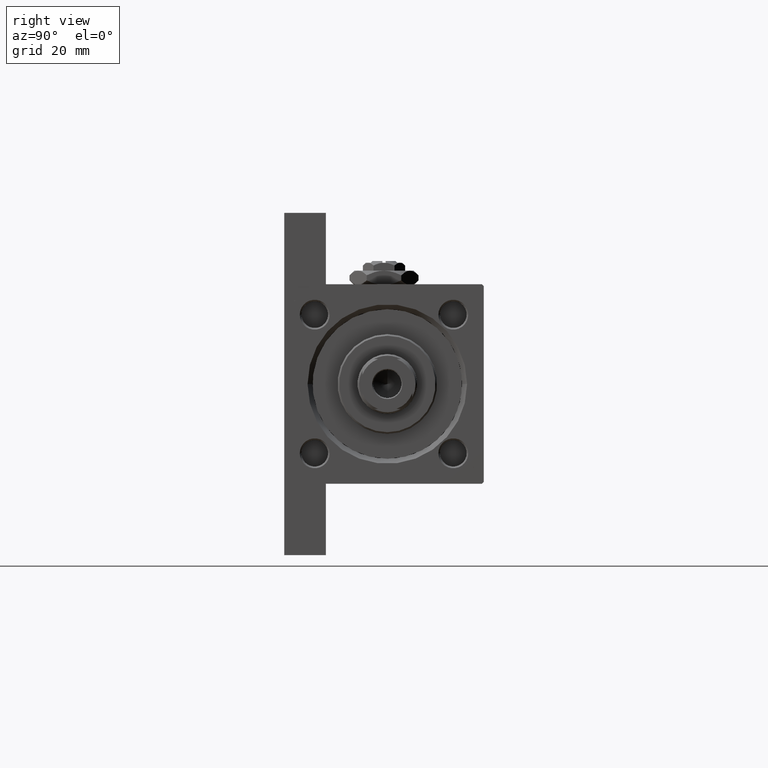
[diagram: clean part render]
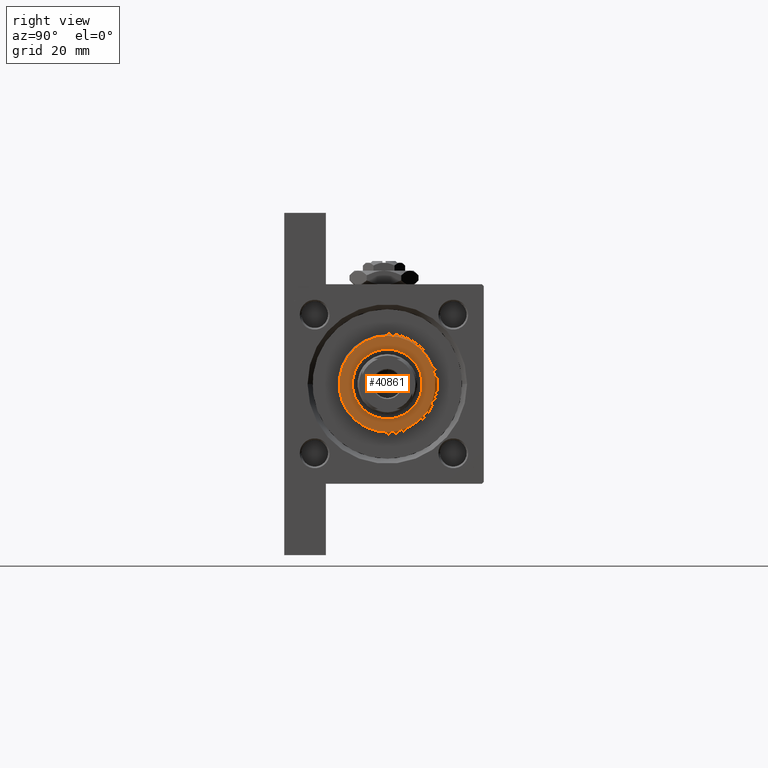
[diagram: same view with one face highlighted and labeled with its STEP entity id]
A machine part, right view. The second image highlights one B-rep face of the part: STEP entity #40861.
In plain terms, the highlighted planar face has unit normal (1, 0, 0).
Its self-contained STEP definition (entity closure, byte-faithful):
#513 = DIRECTION ( 'NONE',  ( 0.000000000000000000, 0.000000000000000000, 1.000000000000000000 ) ) ;
#619 = EDGE_CURVE ( 'NONE', #25744, #8332, #24780, .T. ) ;
#892 = DIRECTION ( 'NONE',  ( 1.000000000000000000, 0.000000000000000000, 0.000000000000000000 ) ) ;
#2132 = DIRECTION ( 'NONE',  ( 1.000000000000000000, 0.000000000000000000, 0.000000000000000000 ) ) ;
#3471 = AXIS2_PLACEMENT_3D ( 'NONE', #15925, #513, #28469 ) ;
#4934 = CARTESIAN_POINT ( 'NONE',  ( 10.50000000000000000, 0.000000000000000000, 36.69999999999999574 ) ) ;
#5949 = AXIS2_PLACEMENT_3D ( 'NONE', #12429, #37312, #2132 ) ;
#7752 = CARTESIAN_POINT ( 'NONE',  ( 0.000000000000000000, 0.000000000000000000, 36.69999999999999574 ) ) ;
#8266 = FACE_OUTER_BOUND ( 'NONE', #47502, .T. ) ;
#8332 = VERTEX_POINT ( 'NONE', #4934 ) ;
#12429 = CARTESIAN_POINT ( 'NONE',  ( 0.000000000000000000, 0.000000000000000000, 36.69999999999999574 ) ) ;
#13295 = CIRCLE ( 'NONE', #16546, 14.50000000000001776 ) ;
#13374 = CIRCLE ( 'NONE', #5949, 10.50000000000000000 ) ;
#14357 = DIRECTION ( 'NONE',  ( 0.000000000000000000, 0.000000000000000000, 1.000000000000000000 ) ) ;
#15925 = CARTESIAN_POINT ( 'NONE',  ( 0.000000000000000000, 0.000000000000000000, 36.69999999999999574 ) ) ;
#15984 = FACE_BOUND ( 'NONE', #44649, .T. ) ;
#16260 = EDGE_CURVE ( 'NONE', #21024, #27308, #40038, .T. ) ;
#16546 = AXIS2_PLACEMENT_3D ( 'NONE', #31932, #24462, #892 ) ;
#17369 = ORIENTED_EDGE ( 'NONE', *, *, #27302, .T. ) ;
#19814 = DIRECTION ( 'NONE',  ( 1.000000000000000000, 0.000000000000000000, -0.000000000000000000 ) ) ;
#20876 = CARTESIAN_POINT ( 'NONE',  ( -14.50000000000001776, 0.000000000000000000, 36.69999999999999574 ) ) ;
#21024 = VERTEX_POINT ( 'NONE', #23325 ) ;
#23325 = CARTESIAN_POINT ( 'NONE',  ( 14.50000000000001776, 1.806354028742346985E-15, 36.69999999999999574 ) ) ;
#24462 = DIRECTION ( 'NONE',  ( 0.000000000000000000, 0.000000000000000000, 1.000000000000000000 ) ) ;
#24780 = CIRCLE ( 'NONE', #3471, 10.50000000000000000 ) ;
#25744 = VERTEX_POINT ( 'NONE', #29959 ) ;
#26150 = ORIENTED_EDGE ( 'NONE', *, *, #33006, .F. ) ;
#26387 = DIRECTION ( 'NONE',  ( 1.000000000000000000, 0.000000000000000000, 0.000000000000000000 ) ) ;
#27302 = EDGE_CURVE ( 'NONE', #27308, #21024, #13295, .T. ) ;
#27308 = VERTEX_POINT ( 'NONE', #20876 ) ;
#28469 = DIRECTION ( 'NONE',  ( 1.000000000000000000, 0.000000000000000000, 0.000000000000000000 ) ) ;
#29959 = CARTESIAN_POINT ( 'NONE',  ( -10.50000000000000000, 1.285879139104720831E-15, 36.69999999999999574 ) ) ;
#31883 = DIRECTION ( 'NONE',  ( 0.000000000000000000, 0.000000000000000000, 1.000000000000000000 ) ) ;
#31932 = CARTESIAN_POINT ( 'NONE',  ( 0.000000000000000000, 0.000000000000000000, 36.69999999999999574 ) ) ;
#33006 = EDGE_CURVE ( 'NONE', #8332, #25744, #13374, .T. ) ;
#34364 = CARTESIAN_POINT ( 'NONE',  ( 0.000000000000000000, 0.000000000000000000, 36.69999999999999574 ) ) ;
#37312 = DIRECTION ( 'NONE',  ( 0.000000000000000000, 0.000000000000000000, 1.000000000000000000 ) ) ;
#40038 = CIRCLE ( 'NONE', #49906, 14.50000000000001776 ) ;
#40861 = ADVANCED_FACE ( 'NONE', ( #15984, #8266 ), #47289, .T. ) ;
#42345 = ORIENTED_EDGE ( 'NONE', *, *, #16260, .T. ) ;
#44649 = EDGE_LOOP ( 'NONE', ( #26150, #48830 ) ) ;
#44737 = AXIS2_PLACEMENT_3D ( 'NONE', #7752, #31883, #19814 ) ;
#47289 = PLANE ( 'NONE',  #44737 ) ;
#47502 = EDGE_LOOP ( 'NONE', ( #17369, #42345 ) ) ;
#48830 = ORIENTED_EDGE ( 'NONE', *, *, #619, .F. ) ;
#49906 = AXIS2_PLACEMENT_3D ( 'NONE', #34364, #14357, #26387 ) ;